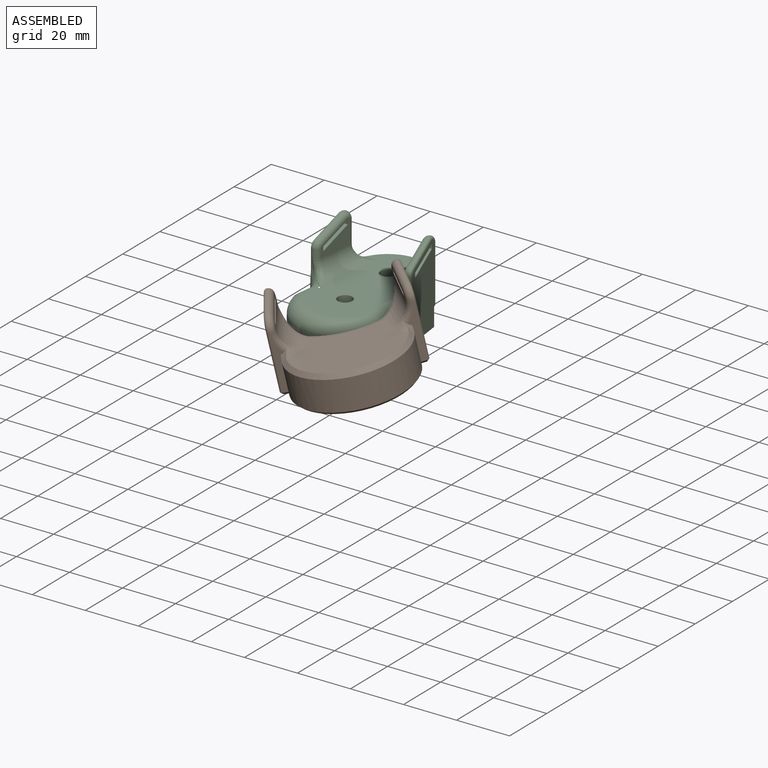
[diagram: assembled view]
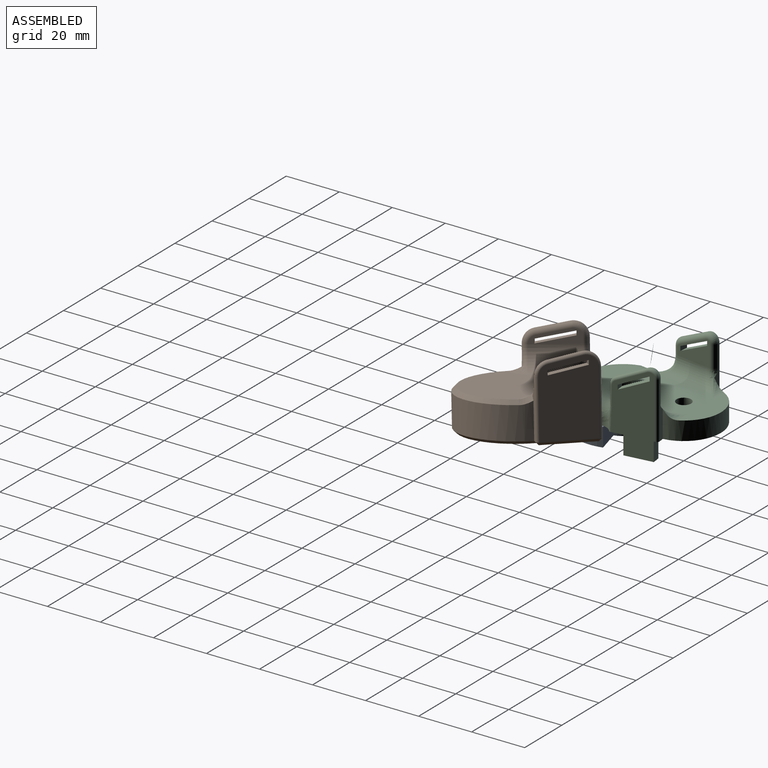
[diagram: assembled view, second angle]
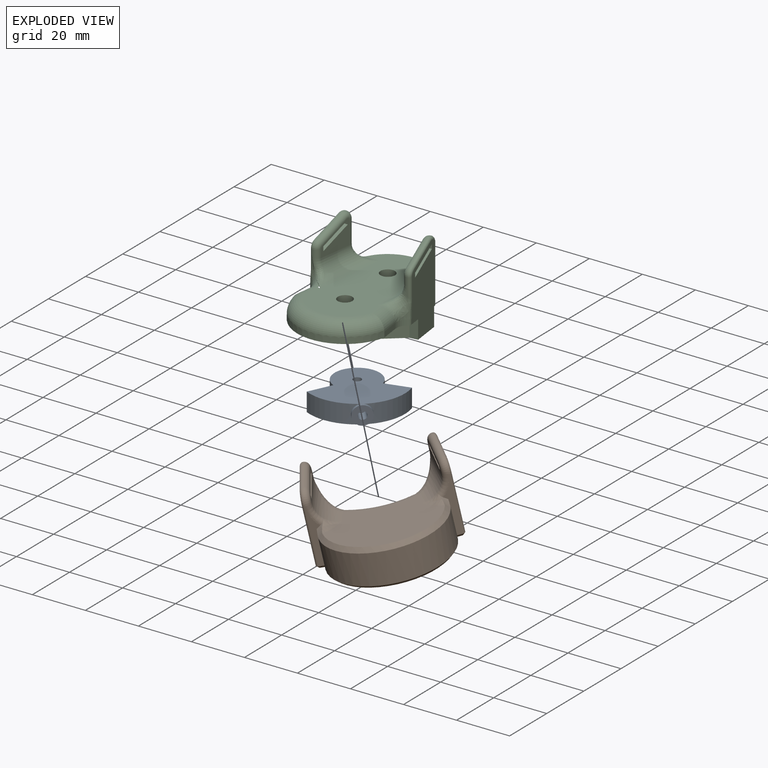
[diagram: exploded view]
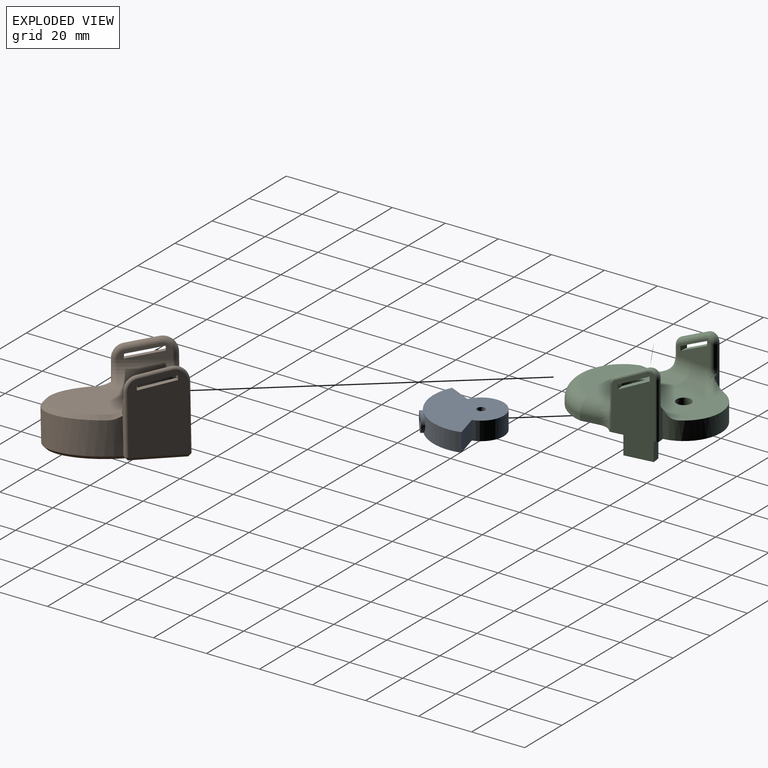
[diagram: exploded view, second angle]
ASSEMBLY  parts=3 mates=2
PART A: 26 faces, bbox 32.7x27.5x7 mm
  f0: plane 32.66x26.5mm, normal (0,0,-1), area 465.2mm2, adj f1,f2,f4,f5,f6,f7,f8,f9
  f1: cylinder r=18mm len=16.33mm, axis (0,0,1), area 123.9mm2, adj f0,f13,f14,f15
  f2: cylinder r=18mm len=16.33mm, axis (0,0,1), area 123.9mm2, adj f0,f12,f14,f15
  f3: plane 6.93x6mm, normal (0,0,-1), area 24.1mm2, adj f4,f5,f6,f7,f8,f9,f10
  f4: plane 3x2.5mm, normal (0.5,0.87,0), area 8.7mm2, adj f0,f3,f5,f9
  f5: plane 3.46x2.5mm, normal (1,0,0), area 8.7mm2, adj f0,f3,f4,f6
  f6: plane 3x2.5mm, normal (0.5,-0.87,0), area 8.7mm2, adj f0,f3,f5,f7
  f7: plane 3x2.5mm, normal (-0.5,-0.87,0), area 8.7mm2, adj f0,f3,f6,f8
  f8: plane 3.46x2.5mm, normal (-1,0,0), area 8.7mm2, adj f0,f3,f7,f9
  f9: plane 3x2.5mm, normal (-0.5,0.87,0), area 8.7mm2, adj f0,f3,f4,f8
  f10: cylinder r=1.5mm len=4.5mm, axis (0,0,1), area 42.4mm2, adj f3,f14
  f11: cylinder r=8.5mm len=17mm, axis (0,0,-1), area 238.6mm2, adj f0,f12,f13,f14
  f12: plane 8.62x7mm, normal (0.42,0.91,0), area 66.5mm2, adj f0,f2,f11,f14
  f13: plane 8.62x7mm, normal (-0.42,0.91,0), area 66.5mm2, adj f0,f1,f11,f14
  f14: plane 32.66x26.5mm, normal (0,0,1), area 506.1mm2, adj f1,f2,f10,f11,f12,f13
  f15: cylinder r=3.5mm len=7mm, axis (0,1,0), area 25.8mm2, adj f1,f2,f16
  f16: plane 7x7mm, normal (0,-1,0), area 31.4mm2, adj f15,f17
  f17: cylinder r=1.5mm len=5mm, axis (0,-1,0), area 47.1mm2, adj f16,f21
  f18: plane 5.23x2.8mm, normal (1,0,0), area 14.6mm2, adj f0,f20,f21,f23
  f19: plane 5.23x2.8mm, normal (-1,0,0), area 14.6mm2, adj f0,f20,f21,f22
  f20: plane 6.96x6mm, normal (0,-1,0), area 29.5mm2, adj f0,f18,f19,f22,f23,f25
  f21: plane 6.96x6mm, normal (0,1,0), area 29.5mm2, adj f0,f17,f18,f19,f22,f23
  f22: plane 3x2.8mm, normal (-0.5,0,-0.87), area 9.7mm2, adj f19,f20,f21,f23
  f23: plane 3x2.8mm, normal (0.5,0,-0.87), area 9.7mm2, adj f18,f20,f21,f22
  f24: plane 3x3mm, normal (0,-1,0), area 7.1mm2, adj f25
  f25: cylinder r=1.5mm len=3.2mm, axis (0,-1,0), area 30.2mm2, adj f20,f24
PART B: 83 faces, bbox 52.4x49.7x33.7 mm
  f0: cylinder r=27mm len=26.97mm, axis (0,0,-1), area 258.6mm2, adj f2,f23,f24,f27
  f1: cylinder r=20mm len=35.43mm, axis (0,0,1), area 407.6mm2, adj f2,f25,f32,f33,f34,f40,f48,f72
  f2: plane 45.37x42.85mm, normal (0,0,-1), area 724mm2, adj f0,f1,f23,f72,f74,f76,f77,f79
  f3: cylinder r=21mm len=42mm, axis (0,0,-1), area 826.2mm2, adj f11,f19,f69,f70,f71,f79
  f4: plane 43.17x33.79mm, normal (0,0,1), area 801.5mm2, adj f30,f31,f33,f67,f68,f70
  f5: plane 17.14x5.06mm, normal (-0.99,-0.13,0), area 45.8mm2, adj f6,f7,f8,f12,f30,f43,f45,f46
  f6: plane 2.98x1.53mm, normal (0.13,-0.99,0), area 4.6mm2, adj f5,f7,f12,f13
  f7: plane 13.36x4.64mm, normal (0.02,-0.18,0.98), area 40mm2, adj f5,f6,f8,f13
  f8: plane 2.98x1.53mm, normal (-0.13,0.99,0), area 4.6mm2, adj f5,f7,f12,f13
  f9: plane 22.96x0.97mm, normal (-0.13,0.99,0), area 18.1mm2, adj f37,f40,f42,f44,f46,f66,f76
  f10: plane 11.01x2.1mm, normal (0.02,-0.18,0.98), area 1.1mm2, adj f37,f38,f45,f64
  f11: plane 20.92x3.32mm, normal (0.13,-0.99,0), area 35.9mm2, adj f3,f38,f39,f62,f69,f81
  f12: plane 13.36x4.64mm, normal (-0.02,0.18,-0.98), area 40mm2, adj f5,f6,f8,f13
  f13: plane 26.96x18.93mm, normal (0.99,0.13,0), area 468.5mm2, adj f6,f7,f8,f12,f62,f63,f64,f65
  f14: plane 2.98x1.53mm, normal (0.13,0.99,0), area 4.6mm2, adj f15,f20,f21,f22
  f15: plane 13.36x4.64mm, normal (-0.02,-0.18,0.98), area 40mm2, adj f14,f16,f21,f22
  f16: plane 2.98x1.53mm, normal (-0.13,-0.99,0), area 4.6mm2, adj f15,f20,f21,f22
  f17: plane 11.01x2.1mm, normal (-0.02,-0.18,0.98), area 1.1mm2, adj f35,f36,f55,f59
  f18: plane 22.96x0.97mm, normal (0.13,0.99,0), area 18.1mm2, adj f35,f48,f50,f52,f54,f61,f72
  f19: plane 20.92x3.32mm, normal (-0.13,-0.99,0), area 35.9mm2, adj f3,f36,f49,f57,f71,f77
  f20: plane 13.36x4.64mm, normal (0.02,0.18,-0.98), area 40mm2, adj f14,f16,f21,f22
  f21: plane 26.96x18.93mm, normal (-0.99,0.13,0), area 468.5mm2, adj f14,f15,f16,f20,f57,f58,f59,f60
  f22: plane 17.14x5.06mm, normal (0.99,-0.13,0), area 45.8mm2, adj f14,f15,f16,f20,f31,f53,f54,f55
  f23: cylinder r=16mm len=32mm, axis (0,0,-1), area 684.5mm2, adj f0,f2,f24
  f24: plane 32x24.61mm, normal (0,0,-1), area 597.9mm2, adj f0,f23
  f25: cylinder r=3.5mm len=7mm, axis (0,1,0), area 18.6mm2, adj f1,f26
  f26: plane 7x7mm, normal (0,1,0), area 31.4mm2, adj f25,f29
  f27: cylinder r=2.75mm len=5.5mm, axis (0,1,0), area 34.6mm2, adj f0,f28
  f28: plane 5.5x5.5mm, normal (0,-1,0), area 16.7mm2, adj f27,f29
  f29: cylinder r=1.5mm len=6mm, axis (0,-1,0), area 56.5mm2, adj f26,f28
  f30: cylinder r=8mm len=18.17mm, axis (0.13,-0.99,0), area 157mm2, adj f4,f5,f32,f39,f41,f44
  f31: cylinder r=8mm len=18.17mm, axis (-0.13,-0.99,0), area 157mm2, adj f4,f22,f34,f49,f51,f52
  f32: bspline ~15.44x11.54mm, area 80.4mm2, adj f1,f30,f33,f42
  f33: torus R=25mm, axis (0,0,1), area 168.9mm2, adj f1,f4,f32,f34
  f34: bspline ~15.44x11.54mm, area 80.4mm2, adj f1,f31,f33,f50
  f35: cylinder r=5mm len=5.9mm, axis (0.99,-0.13,0), area 0.9mm2, adj f17,f18,f56,f60
  f36: cylinder r=5mm len=4.91mm, axis (0.99,-0.13,0), area 0.7mm2, adj f17,f19,f51,f53,f58
  f37: cylinder r=5mm len=5.9mm, axis (-0.99,-0.13,0), area 0.9mm2, adj f9,f10,f47,f65
  f38: cylinder r=5mm len=4.91mm, axis (-0.99,-0.13,0), area 0.7mm2, adj f10,f11,f41,f43,f63
  f39: torus R=9.9mm, axis (0.13,-0.99,0), area 24.4mm2, adj f11,f30,f41,f68,f69
  f40: cylinder r=1.9mm len=15.86mm, axis (0,0,1), area 28.2mm2, adj f1,f9,f42,f76
  f41: bspline ~2.13x1.91mm, area 0.5mm2, adj f30,f38,f39,f43
  f42: bspline ~5.68x2.22mm, area 9.8mm2, adj f9,f32,f40,f44
  f43: torus R=3.1mm, axis (0.99,0.13,0), area 17.2mm2, adj f5,f38,f41,f45
  f44: torus R=9.9mm, axis (-0.13,0.99,0), area 5.6mm2, adj f9,f30,f42,f46
  f45: cylinder r=1.9mm len=11.18mm, axis (0.13,-0.97,-0.19), area 33.7mm2, adj f5,f10,f43,f47
  f46: cylinder r=1.9mm len=2.13mm, axis (0,0,1), area 5.9mm2, adj f5,f9,f44,f47
  f47: torus R=3.1mm, axis (0.99,0.13,0), area 22.6mm2, adj f5,f37,f45,f46
  f48: cylinder r=1.9mm len=15.86mm, axis (0,0,1), area 28.2mm2, adj f1,f18,f50,f72
  f49: torus R=9.9mm, axis (0.13,0.99,0), area 24.4mm2, adj f19,f31,f51,f67,f71
  f50: bspline ~5.68x2.22mm, area 9.8mm2, adj f18,f34,f48,f52
  f51: bspline ~2.13x1.91mm, area 0.5mm2, adj f31,f36,f49,f53
  f52: torus R=9.9mm, axis (-0.13,-0.99,0), area 5.6mm2, adj f18,f31,f50,f54
  f53: torus R=3.1mm, axis (-0.99,0.13,0), area 17.2mm2, adj f22,f36,f51,f55
  f54: cylinder r=1.9mm len=2.13mm, axis (0,0,1), area 5.9mm2, adj f18,f22,f52,f56
  f55: cylinder r=1.9mm len=11.18mm, axis (0.13,0.97,0.19), area 33.7mm2, adj f17,f22,f53,f56
  f56: torus R=3.1mm, axis (-0.99,0.13,0), area 22.6mm2, adj f22,f35,f54,f55
  f57: cylinder r=1mm len=20.86mm, axis (0,0,-1), area 32.8mm2, adj f19,f21,f58,f75
  f58: torus R=4mm, axis (-0.99,0.13,0), area 10.1mm2, adj f21,f36,f57,f59
  f59: cylinder r=1mm len=11.31mm, axis (-0.13,-0.97,-0.19), area 17.7mm2, adj f17,f21,f58,f60
  f60: torus R=4mm, axis (-0.99,0.13,0), area 12.8mm2, adj f21,f35,f59,f61
  f61: cylinder r=1mm len=22.96mm, axis (0,0,1), area 36.1mm2, adj f18,f21,f60,f73
  f62: cylinder r=1mm len=20.86mm, axis (0,0,1), area 32.8mm2, adj f11,f13,f63,f82
  f63: torus R=4mm, axis (0.99,0.13,0), area 10.1mm2, adj f13,f38,f62,f64
  f64: cylinder r=1mm len=11.31mm, axis (-0.13,0.97,0.19), area 17.7mm2, adj f10,f13,f63,f65
  f65: torus R=4mm, axis (0.99,0.13,0), area 12.8mm2, adj f13,f37,f64,f66
  f66: cylinder r=1mm len=22.96mm, axis (0,0,-1), area 36.1mm2, adj f9,f13,f65,f78
  f67: bspline ~8.64x5.56mm, area 7.9mm2, adj f4,f49,f71
  f68: bspline ~8.87x5.65mm, area 16.2mm2, adj f4,f39,f69
  f69: bspline ~7.85x4.27mm, area 11.3mm2, adj f3,f11,f39,f68,f70
  f70: cone r=19.5mm half-angle=45deg, axis (0,0,-1), area 127.1mm2, adj f3,f4,f69,f71
  f71: bspline ~6.38x3.36mm, area 11.3mm2, adj f3,f19,f49,f67,f70
  f72: plane 3.03x1.71mm, normal (0.09,0.7,-0.71), area 3.1mm2, adj f1,f2,f18,f48,f73
  f73: cone r=1mm half-angle=45deg, axis (0,0,1), area 1.1mm2, adj f61,f72,f74
  f74: plane 19.06x3.42mm, normal (-0.7,0.09,-0.71), area 27mm2, adj f2,f21,f73,f75
  f75: cone r=1mm half-angle=45deg, axis (0,0,1), area 1.6mm2, adj f57,f74,f77
  f76: plane 3.47x2.16mm, normal (-0.09,0.7,-0.71), area 3.1mm2, adj f1,f2,f9,f40,f78
  f77: plane 4.16x2.28mm, normal (-0.09,-0.7,-0.71), area 3.5mm2, adj f2,f19,f75,f79
  f78: cone r=1mm half-angle=45deg, axis (0,0,1), area 0.7mm2, adj f66,f76,f80
  f79: cone r=21mm half-angle=45deg, axis (0,0,1), area 99.9mm2, adj f2,f3,f77,f81
  f80: plane 19.12x3.49mm, normal (0.7,0.09,-0.71), area 27mm2, adj f2,f13,f78,f82
  f81: plane 4.16x2.28mm, normal (0.09,-0.7,-0.71), area 3.5mm2, adj f2,f11,f79,f82
  f82: cone r=1mm half-angle=45deg, axis (0,0,1), area 1.6mm2, adj f62,f80,f81
PART C: 97 faces, bbox 65.9x76.5x51.5 mm
  f0: plane 7.13x2mm, normal (0.99,0.13,0), area 14.4mm2, adj f1,f94,f95,f96
  f1: cylinder r=18mm len=35.14mm, axis (0,0,1), area 97.3mm2, adj f0,f2,f93,f96
  f2: plane 7.13x2mm, normal (-0.99,0.13,0), area 14.4mm2, adj f1,f3,f92,f96
  f3: cylinder r=5mm len=4.61mm, axis (0,0,-1), area 10.5mm2, adj f2,f4,f91,f96
  f4: bspline ~7.29x5.48mm, area 22.2mm2, adj f3,f5,f90,f92
  f5: torus R=10mm, axis (-0.13,-0.99,0), area 19.9mm2, adj f4,f6,f87,f88,f89,f92
  f6: plane 6.95x0.76mm, normal (-0.13,-0.99,0), area 1.6mm2, adj f5,f7,f84,f85,f86
  f7: cylinder r=1.9mm len=3.09mm, axis (0,0,1), area 9.2mm2, adj f6,f8,f83,f84
  f8: plane 13.25x9.39mm, normal (0.99,-0.13,0), area 73mm2, adj f7,f9,f75,f76,f77,f79,f80,f81
  f9: cylinder r=1.9mm len=11.66mm, axis (0.12,0.9,0.42), area 36.8mm2, adj f8,f10,f75,f83
  f10: plane 11.08x5.2mm, normal (-0.05,-0.42,0.91), area 1.2mm2, adj f9,f11,f74,f86
  f11: cylinder r=1mm len=11.62mm, axis (-0.12,-0.9,-0.42), area 19.3mm2, adj f10,f12,f13,f73
  f12: torus R=2mm, axis (-0.99,0.13,0), area 4.7mm2, adj f11,f13,f85,f86
  f13: plane 30.29x15.42mm, normal (-0.99,0.13,0), area 372.6mm2, adj f11,f12,f14,f18,f19,f20,f73,f79
  f14: plane 7x2.98mm, normal (-0.13,-0.99,0), area 21mm2, adj f13,f15,f18,f96
  f15: plane 8.49x7mm, normal (-0.64,-0.77,0), area 77mm2, adj f14,f16,f18,f96
  f16: cylinder r=9mm len=7mm, axis (0,0,1), area 48.7mm2, adj f15,f17,f18,f96
  f17: cylinder r=14.09mm len=14.3mm, axis (0,0,-1), area 149.8mm2, adj f16,f18,f19,f96
  f18: plane 17.9x17.44mm, normal (0,0,-1), area 90.4mm2, adj f13,f14,f15,f16,f17,f19
  f19: plane 7x2.98mm, normal (0.13,0.99,0), area 21mm2, adj f13,f17,f18,f96
  f20: cylinder r=1mm len=21.29mm, axis (0,0,1), area 33.4mm2, adj f13,f21,f73,f96
  f21: plane 21.32x2.02mm, normal (0.13,0.99,0), area 23.2mm2, adj f20,f22,f71,f72,f74,f76,f96
  f22: cylinder r=14mm len=27.77mm, axis (0,0,-1), area 296.2mm2, adj f21,f23,f61,f62,f63,f70,f71,f96
  f23: plane 21.33x2.02mm, normal (-0.13,0.99,0), area 23.2mm2, adj f22,f24,f58,f59,f60,f61,f96
  f24: cylinder r=1.9mm len=8.29mm, axis (0,0,1), area 24.7mm2, adj f23,f25,f57,f58
  f25: torus R=1.1mm, axis (0.99,0.13,0), area 13.8mm2, adj f24,f26,f57,f60
  f26: cylinder r=1.9mm len=11.66mm, axis (0.12,-0.9,-0.42), area 36.8mm2, adj f25,f27,f56,f57
  f27: plane 11.08x5.2mm, normal (0.05,-0.42,0.91), area 1.2mm2, adj f26,f28,f55,f60
  f28: cylinder r=1mm len=11.62mm, axis (-0.12,0.9,0.42), area 19.3mm2, adj f27,f29,f53,f54
  f29: plane 30.29x15.42mm, normal (0.99,0.13,0), area 372.6mm2, adj f28,f30,f31,f32,f33,f34,f44,f45
  f30: plane 11.45x5.2mm, normal (-0.05,0.42,-0.91), area 36.9mm2, adj f29,f31,f33,f57
  f31: plane 2.98x1.66mm, normal (-0.13,0.99,0), area 5mm2, adj f29,f30,f32,f57
  f32: plane 11.45x5.2mm, normal (0.05,-0.42,0.91), area 36.9mm2, adj f29,f31,f33,f57
  f33: plane 2.98x1.66mm, normal (0.13,-0.99,0), area 5mm2, adj f29,f30,f32,f57
  f34: bspline ~4.36x1.44mm, area 2.7mm2, adj f29,f35,f44,f52
  f35: torus R=10mm, axis (0.13,-0.99,0), area 19.9mm2, adj f34,f36,f37,f42,f43,f94
  f36: bspline ~7.29x5.48mm, area 22.2mm2, adj f35,f52,f94,f95
  f37: plane 6.95x0.76mm, normal (0.13,-0.99,0), area 1.6mm2, adj f35,f38,f41,f44,f55
  f38: torus R=7.9mm, axis (0.13,-0.99,0), area 8.3mm2, adj f37,f39,f41,f42
  f39: cylinder r=6mm len=27.7mm, axis (-0.13,0.99,0), area 164.5mm2, adj f38,f40,f42,f57,f58,f61,f63
  f40: bspline ~1.66x1.47mm, area 0.1mm2, adj f39,f42,f43
  f41: cylinder r=1.9mm len=3.09mm, axis (0,0,-1), area 9.2mm2, adj f37,f38,f56,f57
  f42: bspline ~6.83x6.1mm, area 17.8mm2, adj f35,f38,f39,f40
  f43: cylinder r=5mm len=1.08mm, axis (0.99,0.13,0), area 0.3mm2, adj f35,f40,f63
  f44: cylinder r=1mm len=6.95mm, axis (0,0,1), area 10.9mm2, adj f29,f34,f37,f53
  f45: plane 7x2.98mm, normal (-0.13,0.99,0), area 21mm2, adj f29,f46,f49,f96
  f46: cylinder r=14.09mm len=14.3mm, axis (0,0,-1), area 149.8mm2, adj f45,f47,f49,f96
  f47: cylinder r=9mm len=7mm, axis (0,0,1), area 48.7mm2, adj f46,f48,f49,f96
  f48: plane 8.49x7mm, normal (0.64,-0.77,0), area 77mm2, adj f47,f49,f50,f96
  f49: plane 17.9x17.44mm, normal (0,0,-1), area 90.4mm2, adj f29,f45,f46,f47,f48,f50
  f50: plane 7x2.98mm, normal (0.13,-0.99,0), area 21mm2, adj f29,f48,f49,f96
  f51: cylinder r=1mm len=2mm, axis (0,0,1), area 2.1mm2, adj f29,f52,f95,f96
  f52: bspline ~6.66x1.21mm, area 6.2mm2, adj f29,f34,f36,f51
  f53: torus R=2mm, axis (0.99,0.13,0), area 4.7mm2, adj f28,f29,f44,f55
  f54: torus R=2mm, axis (0.99,0.13,0), area 8.3mm2, adj f28,f29,f59,f60
  f55: cylinder r=3mm len=2.72mm, axis (-0.99,-0.13,0), area 0.3mm2, adj f27,f37,f53,f56
  f56: torus R=1.1mm, axis (0.99,0.13,0), area 7.8mm2, adj f26,f41,f55,f57
  f57: plane 13.25x9.39mm, normal (-0.99,-0.13,0), area 73mm2, adj f24,f25,f26,f30,f31,f32,f33,f39
  f58: torus R=7.9mm, axis (-0.13,0.99,0), area 2.5mm2, adj f23,f24,f39,f61
  f59: cylinder r=1mm len=21.29mm, axis (0,0,-1), area 33.4mm2, adj f23,f29,f54,f96
  f60: cylinder r=3mm len=4.25mm, axis (-0.99,-0.13,0), area 0.6mm2, adj f23,f25,f27,f54
  f61: bspline ~8.47x6.09mm, area 11.3mm2, adj f22,f23,f39,f58,f62
  f62: cylinder r=5mm len=6.42mm, axis (-0.99,-0.13,0), area 11.7mm2, adj f22,f61,f63
  f63: plane 70x44.98mm, normal (0,0,1), area 891mm2, adj f22,f39,f43,f62,f64,f67,f70,f77
  f64: cylinder r=2.75mm len=5.5mm, axis (0,0,1), area 51.8mm2, adj f63,f65
  f65: plane 5.5x5.5mm, normal (0,0,1), area 16.7mm2, adj f64,f66
  f66: cylinder r=1.5mm len=4mm, axis (0,0,1), area 37.7mm2, adj f65,f96
  f67: cylinder r=2.75mm len=5.5mm, axis (0,0,1), area 51.8mm2, adj f63,f68
  f68: plane 5.5x5.5mm, normal (0,0,1), area 16.7mm2, adj f67,f69
  f69: cylinder r=1.5mm len=4mm, axis (0,0,1), area 37.7mm2, adj f68,f96
  f70: cylinder r=5mm len=6.42mm, axis (-0.99,0.13,0), area 11.7mm2, adj f22,f63,f71
  f71: bspline ~8.47x6.09mm, area 11.3mm2, adj f21,f22,f70,f72,f77
  f72: torus R=7.9mm, axis (0.13,0.99,0), area 2.5mm2, adj f21,f71,f76,f77
  f73: torus R=2mm, axis (-0.99,0.13,0), area 8.3mm2, adj f11,f13,f20,f74
  f74: cylinder r=3mm len=4.25mm, axis (0.99,-0.13,0), area 0.6mm2, adj f10,f21,f73,f75
  f75: torus R=1.1mm, axis (-0.99,0.13,0), area 13.8mm2, adj f8,f9,f74,f76
  f76: cylinder r=1.9mm len=8.29mm, axis (0,0,-1), area 24.7mm2, adj f8,f21,f72,f75
  f77: cylinder r=6mm len=27.7mm, axis (-0.13,-0.99,0), area 164.5mm2, adj f8,f63,f71,f72,f78,f84,f89
  f78: bspline ~13.7x10.48mm, area 19mm2, adj f77,f88,f89
  f79: plane 2.98x1.66mm, normal (-0.13,-0.99,0), area 5mm2, adj f8,f13,f80,f82
  f80: plane 11.45x5.2mm, normal (0.05,0.42,-0.91), area 36.9mm2, adj f8,f13,f79,f81
  f81: plane 2.98x1.66mm, normal (0.13,0.99,0), area 5mm2, adj f8,f13,f80,f82
  f82: plane 11.45x5.2mm, normal (-0.05,-0.42,0.91), area 36.9mm2, adj f8,f13,f79,f81
  f83: torus R=1.1mm, axis (-0.99,0.13,0), area 7.8mm2, adj f7,f8,f9,f86
  f84: torus R=7.9mm, axis (-0.13,-0.99,0), area 8.3mm2, adj f6,f7,f77,f89
  f85: cylinder r=1mm len=6.95mm, axis (0,0,-1), area 10.9mm2, adj f6,f12,f13,f87
  f86: cylinder r=3mm len=2.72mm, axis (0.99,-0.13,0), area 0.3mm2, adj f6,f10,f12,f83
  f87: bspline ~5.96x1.44mm, area 2.7mm2, adj f5,f13,f85,f90
  f88: cylinder r=5mm len=10.92mm, axis (0.99,-0.13,0), area 158.3mm2, adj f5,f63,f78
  f89: bspline ~6.82x6.1mm, area 17.7mm2, adj f5,f77,f78,f84
  f90: bspline ~6.66x1.21mm, area 6.2mm2, adj f4,f13,f87,f91
  f91: cylinder r=1mm len=2mm, axis (0,0,-1), area 2.1mm2, adj f3,f13,f90,f96
  f92: cylinder r=5mm len=7.77mm, axis (0.13,0.99,0), area 50.1mm2, adj f2,f4,f5,f63,f93
  f93: torus R=13mm, axis (0,0,1), area 336.1mm2, adj f1,f63,f92,f94
  f94: cylinder r=5mm len=7.77mm, axis (0.13,-0.99,0), area 50.1mm2, adj f0,f35,f36,f63,f93
  f95: cylinder r=5mm len=4.61mm, axis (0,0,1), area 10.5mm2, adj f0,f36,f51,f96
  f96: plane 55x37.95mm, normal (0,0,-1), area 1445mm2, adj f0,f1,f2,f3,f13,f14,f15,f16
PLACE A rot(axis=(0,0,1),40deg) t=(-14.78,-5.38,0)mm
PLACE B rot(axis=(0.1,-0.27,0.96),41.6deg) t=(-14.23,-4.92,0.07)mm
PLACE C at identity fixed
MATE revolute A.f17 <-> B.f25  axis (0.64,-0.77,0) through (12.21,-37.55,3.5)mm
MATE revolute A.f1 <-> C.f1  axis (0,0,1) through (0,-23,7)mm
